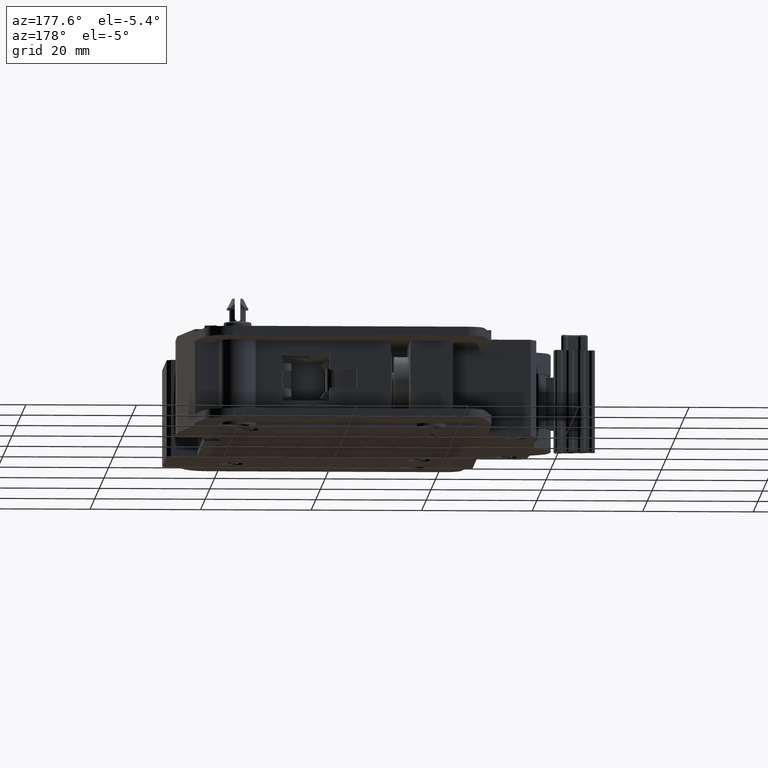
[diagram: clean part render]
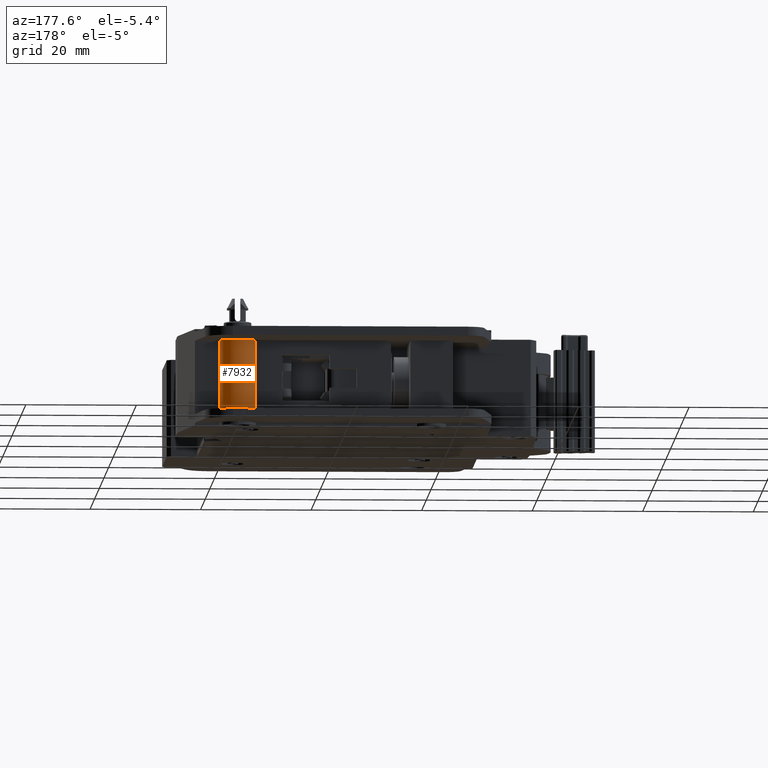
[diagram: same view with one face highlighted and labeled with its STEP entity id]
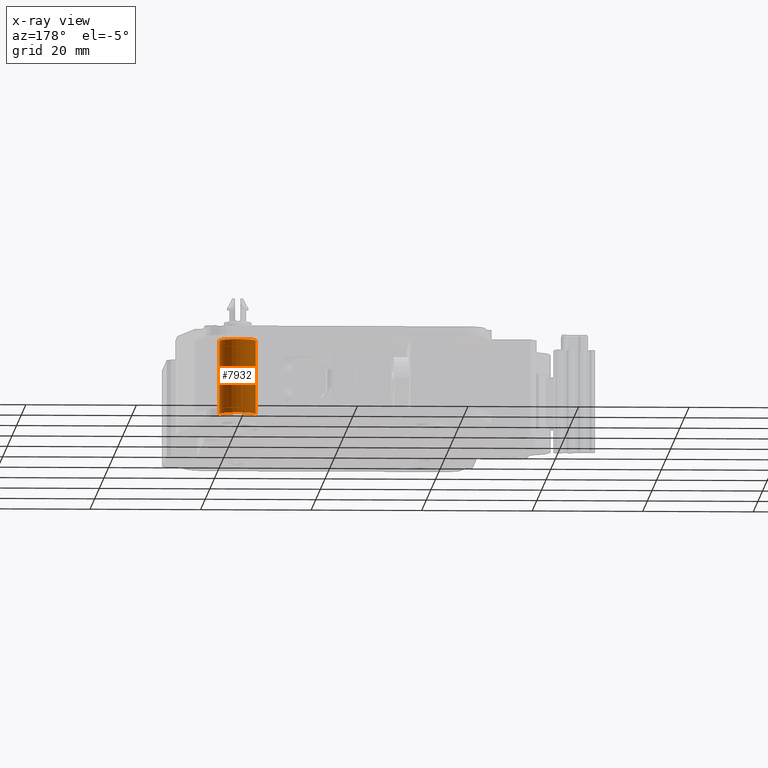
[diagram: x-ray of the same camera — body ghosted, the highlighted face saturated]
A machine part, auxiliary view. The second image highlights one B-rep face of the part: STEP entity #7932.
The next image is the same camera in x-ray: the body ghosted, the highlighted face saturated — about 0% of this face is hidden behind the body in this view.
In plain terms, the highlighted cylindrical surface (edge-blend (fillet) strip) has radius 3.3 mm, axis along (0, 0, 1).
Its self-contained STEP definition (entity closure, byte-faithful):
#1895 = LINE ( 'NONE', #11862, #22186 ) ;
#2618 = CARTESIAN_POINT ( 'NONE',  ( 1.543307086614173596, 1.594488188976378007, -4.312619414957868713 ) ) ;
#3409 = ORIENTED_EDGE ( 'NONE', *, *, #31201, .T. ) ;
#6405 = ORIENTED_EDGE ( 'NONE', *, *, #26702, .T. ) ;
#6622 = VECTOR ( 'NONE', #14769, 39.37007874015748143 ) ;
#6690 = VERTEX_POINT ( 'NONE', #32140 ) ;
#7852 = AXIS2_PLACEMENT_3D ( 'NONE', #19267, #29240, #16796 ) ;
#7932 = ADVANCED_FACE ( 'NONE', ( #20581 ), #17465, .T. ) ;
#10293 = DIRECTION ( 'NONE',  ( 0.0000000000000000000, 0.0000000000000000000, 1.000000000000000000 ) ) ;
#11862 = CARTESIAN_POINT ( 'NONE',  ( 1.413385826771653697, 1.594488188976378007, -4.312619414957868713 ) ) ;
#11904 = DIRECTION ( 'NONE',  ( 1.000000000000000000, 0.0000000000000000000, 0.0000000000000000000 ) ) ;
#12317 = VERTEX_POINT ( 'NONE', #26067 ) ;
#12328 = LINE ( 'NONE', #19843, #6622 ) ;
#12411 = DIRECTION ( 'NONE',  ( 1.000000000000000000, 0.0000000000000000000, 0.0000000000000000000 ) ) ;
#14343 = DIRECTION ( 'NONE',  ( -0.0000000000000000000, -0.0000000000000000000, -1.000000000000000000 ) ) ;
#14398 = AXIS2_PLACEMENT_3D ( 'NONE', #19103, #14343, #11904 ) ;
#14769 = DIRECTION ( 'NONE',  ( 0.0000000000000000000, 0.0000000000000000000, 1.000000000000000000 ) ) ;
#16551 = CARTESIAN_POINT ( 'NONE',  ( 1.673228346456693050, 1.594488188976378007, 0.6062992125984251190 ) ) ;
#16796 = DIRECTION ( 'NONE',  ( -1.000000000000000000, 0.0000000000000000000, 0.0000000000000000000 ) ) ;
#16989 = CIRCLE ( 'NONE', #14398, 0.1299212598425198706 ) ;
#17465 = CYLINDRICAL_SURFACE ( 'NONE', #29019, 0.1299212598425198706 ) ;
#19103 = CARTESIAN_POINT ( 'NONE',  ( 1.543307086614173596, 1.594488188976378007, 0.6062992125984252301 ) ) ;
#19267 = CARTESIAN_POINT ( 'NONE',  ( 1.543307086614173596, 1.594488188976378007, 0.08267716535433089486 ) ) ;
#19762 = CARTESIAN_POINT ( 'NONE',  ( 1.413385826771653697, 1.594488188976378007, 0.08267716535433089486 ) ) ;
#19843 = CARTESIAN_POINT ( 'NONE',  ( 1.673228346456693050, 1.594488188976378007, -4.312619414957868713 ) ) ;
#20581 = FACE_OUTER_BOUND ( 'NONE', #27756, .T. ) ;
#22186 = VECTOR ( 'NONE', #26882, 39.37007874015748143 ) ;
#22938 = VERTEX_POINT ( 'NONE', #19762 ) ;
#23008 = ORIENTED_EDGE ( 'NONE', *, *, #23759, .F. ) ;
#23759 = EDGE_CURVE ( 'NONE', #12317, #24042, #12328, .T. ) ;
#24042 = VERTEX_POINT ( 'NONE', #16551 ) ;
#26067 = CARTESIAN_POINT ( 'NONE',  ( 1.673228346456693272, 1.594488188976378007, 0.08267716535433089486 ) ) ;
#26702 = EDGE_CURVE ( 'NONE', #12317, #22938, #27667, .T. ) ;
#26882 = DIRECTION ( 'NONE',  ( 0.0000000000000000000, 0.0000000000000000000, 1.000000000000000000 ) ) ;
#27433 = ORIENTED_EDGE ( 'NONE', *, *, #30605, .T. ) ;
#27667 = CIRCLE ( 'NONE', #7852, 0.1299212598425198706 ) ;
#27756 = EDGE_LOOP ( 'NONE', ( #6405, #27433, #3409, #23008 ) ) ;
#29019 = AXIS2_PLACEMENT_3D ( 'NONE', #2618, #10293, #12411 ) ;
#29240 = DIRECTION ( 'NONE',  ( -0.0000000000000000000, -0.0000000000000000000, 1.000000000000000000 ) ) ;
#30605 = EDGE_CURVE ( 'NONE', #22938, #6690, #1895, .T. ) ;
#31201 = EDGE_CURVE ( 'NONE', #6690, #24042, #16989, .T. ) ;
#32140 = CARTESIAN_POINT ( 'NONE',  ( 1.413385826771653697, 1.594488188976378007, 0.6062992125984251190 ) ) ;